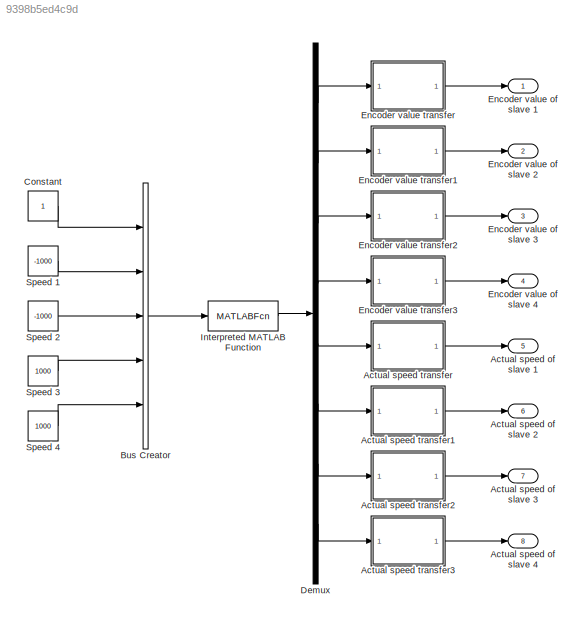
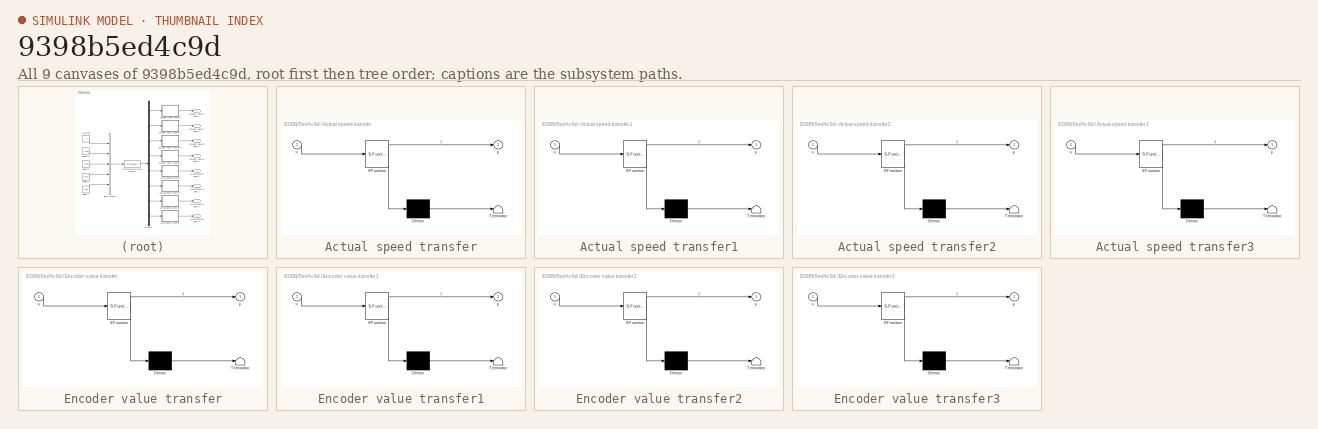
[diagram: thumbnail index - all 9 canvases of the model, root first then tree order]
MODEL slx_9398b5ed4c9d
KIND model
CONFIG AbsTol = auto
CONFIG EnableMultiTasking = off
CONFIG FixedStep = 1
CONFIG MaxStep = auto
CONFIG MinStep = auto
CONFIG RelTol = 1e-3
CONFIG SampleTimeConstraint = Unconstrained
CONFIG Solver = FixedStepAuto
CONFIG SolverName = FixedStepAuto
CONFIG StartTime = 0.0
CONFIG StopTime = 5
BLOCK [Outport] Actual speed of slave 1
  IconDisplay = Port number
  Port = 5
BLOCK [Outport] Actual speed of slave 2
  IconDisplay = Port number
  Port = 6
BLOCK [Outport] Actual speed of slave 3
  IconDisplay = Port number
  Port = 7
BLOCK [Outport] Actual speed of slave 4
  IconDisplay = Port number
  Port = 8
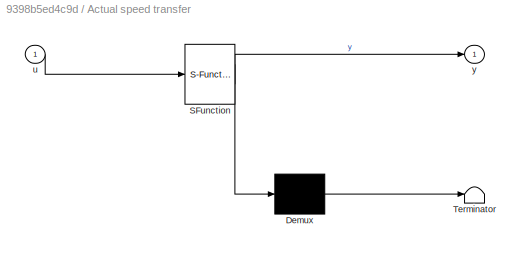
BLOCK [SubSystem] Actual speed transfer
  ErrorFcn = Stateflow.Translate.translate
  PermitHierarchicalResolution = ExplicitOnly
  Ports = [1, 1]
  RequestExecContextInheritance = off
  SFBlockType = MATLAB Function
  TreatAsAtomicUnit = on
BLOCK [Demux] Actual speed transfer/ Demux 
  Outputs = 1
  Ports = [1, 1]
BLOCK [S-Function] Actual speed transfer/ SFunction 
  EnableBusSupport = on
  FunctionName = sf_sfun
  PortCounts = [1 2]
  Ports = [1, 2]
  SFcnIsStateOwnerBlock = off
  SFunctionDeploymentMode = off
  Tag = Stateflow S-Function simulink_test 1
BLOCK [Terminator] Actual speed transfer/ Terminator 
BLOCK [Inport] Actual speed transfer/u
  IconDisplay = Port number
BLOCK [Outport] Actual speed transfer/y
  IconDisplay = Port number
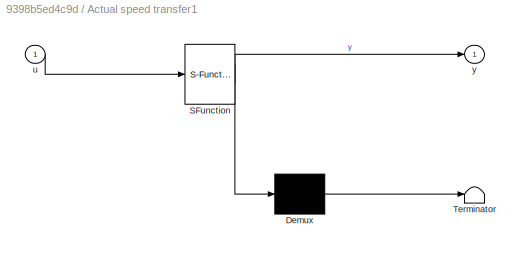
BLOCK [SubSystem] Actual speed transfer1
  ErrorFcn = Stateflow.Translate.translate
  PermitHierarchicalResolution = ExplicitOnly
  Ports = [1, 1]
  RequestExecContextInheritance = off
  SFBlockType = MATLAB Function
  TreatAsAtomicUnit = on
BLOCK [Demux] Actual speed transfer1/ Demux 
  Outputs = 1
  Ports = [1, 1]
BLOCK [S-Function] Actual speed transfer1/ SFunction 
  EnableBusSupport = on
  FunctionName = sf_sfun
  PortCounts = [1 2]
  Ports = [1, 2]
  SFcnIsStateOwnerBlock = off
  SFunctionDeploymentMode = off
  Tag = Stateflow S-Function simulink_test 6
BLOCK [Terminator] Actual speed transfer1/ Terminator 
BLOCK [Inport] Actual speed transfer1/u
  IconDisplay = Port number
BLOCK [Outport] Actual speed transfer1/y
  IconDisplay = Port number
BLOCK [SubSystem] Actual speed transfer2
  ErrorFcn = Stateflow.Translate.translate
  PermitHierarchicalResolution = ExplicitOnly
  Ports = [1, 1]
  RequestExecContextInheritance = off
  SFBlockType = MATLAB Function
  TreatAsAtomicUnit = on
BLOCK [Demux] Actual speed transfer2/ Demux 
  Outputs = 1
  Ports = [1, 1]
BLOCK [S-Function] Actual speed transfer2/ SFunction 
  EnableBusSupport = on
  FunctionName = sf_sfun
  PortCounts = [1 2]
  Ports = [1, 2]
  SFcnIsStateOwnerBlock = off
  SFunctionDeploymentMode = off
  Tag = Stateflow S-Function simulink_test 7
BLOCK [Terminator] Actual speed transfer2/ Terminator 
BLOCK [Inport] Actual speed transfer2/u
  IconDisplay = Port number
BLOCK [Outport] Actual speed transfer2/y
  IconDisplay = Port number
BLOCK [SubSystem] Actual speed transfer3
  ErrorFcn = Stateflow.Translate.translate
  PermitHierarchicalResolution = ExplicitOnly
  Ports = [1, 1]
  RequestExecContextInheritance = off
  SFBlockType = MATLAB Function
  TreatAsAtomicUnit = on
BLOCK [Demux] Actual speed transfer3/ Demux 
  Outputs = 1
  Ports = [1, 1]
BLOCK [S-Function] Actual speed transfer3/ SFunction 
  EnableBusSupport = on
  FunctionName = sf_sfun
  PortCounts = [1 2]
  Ports = [1, 2]
  SFcnIsStateOwnerBlock = off
  SFunctionDeploymentMode = off
  Tag = Stateflow S-Function simulink_test 8
BLOCK [Terminator] Actual speed transfer3/ Terminator 
BLOCK [Inport] Actual speed transfer3/u
  IconDisplay = Port number
BLOCK [Outport] Actual speed transfer3/y
  IconDisplay = Port number
BLOCK [BusCreator] Bus Creator
  DisplayOption = bar
  InheritFromInputs = on
  Inputs = 5
  Ports = [5, 1]
BLOCK [Constant] Constant
BLOCK [Demux] Demux
  DisplayOption = bar
  Outputs = 8
  Ports = [1, 8]
BLOCK [Outport] Encoder value of slave 1
  IconDisplay = Port number
BLOCK [Outport] Encoder value of slave 2
  IconDisplay = Port number
  Port = 2
BLOCK [Outport] Encoder value of slave 3
  IconDisplay = Port number
  Port = 3
BLOCK [Outport] Encoder value of slave 4
  IconDisplay = Port number
  Port = 4
BLOCK [SubSystem] Encoder value transfer
  ErrorFcn = Stateflow.Translate.translate
  PermitHierarchicalResolution = ExplicitOnly
  Ports = [1, 1]
  RequestExecContextInheritance = off
  SFBlockType = MATLAB Function
  TreatAsAtomicUnit = on
BLOCK [Demux] Encoder value transfer/ Demux 
  Outputs = 1
  Ports = [1, 1]
BLOCK [S-Function] Encoder value transfer/ SFunction 
  EnableBusSupport = on
  FunctionName = sf_sfun
  PortCounts = [1 2]
  Ports = [1, 2]
  SFcnIsStateOwnerBlock = off
  SFunctionDeploymentMode = off
  Tag = Stateflow S-Function simulink_test 2
BLOCK [Terminator] Encoder value transfer/ Terminator 
BLOCK [Inport] Encoder value transfer/u
  IconDisplay = Port number
BLOCK [Outport] Encoder value transfer/y
  IconDisplay = Port number
BLOCK [SubSystem] Encoder value transfer1
  ErrorFcn = Stateflow.Translate.translate
  PermitHierarchicalResolution = ExplicitOnly
  Ports = [1, 1]
  RequestExecContextInheritance = off
  SFBlockType = MATLAB Function
  TreatAsAtomicUnit = on
BLOCK [Demux] Encoder value transfer1/ Demux 
  Outputs = 1
  Ports = [1, 1]
BLOCK [S-Function] Encoder value transfer1/ SFunction 
  EnableBusSupport = on
  FunctionName = sf_sfun
  PortCounts = [1 2]
  Ports = [1, 2]
  SFcnIsStateOwnerBlock = off
  SFunctionDeploymentMode = off
  Tag = Stateflow S-Function simulink_test 3
BLOCK [Terminator] Encoder value transfer1/ Terminator 
BLOCK [Inport] Encoder value transfer1/u
  IconDisplay = Port number
BLOCK [Outport] Encoder value transfer1/y
  IconDisplay = Port number
BLOCK [SubSystem] Encoder value transfer2
  ErrorFcn = Stateflow.Translate.translate
  PermitHierarchicalResolution = ExplicitOnly
  Ports = [1, 1]
  RequestExecContextInheritance = off
  SFBlockType = MATLAB Function
  TreatAsAtomicUnit = on
BLOCK [Demux] Encoder value transfer2/ Demux 
  Outputs = 1
  Ports = [1, 1]
BLOCK [S-Function] Encoder value transfer2/ SFunction 
  EnableBusSupport = on
  FunctionName = sf_sfun
  PortCounts = [1 2]
  Ports = [1, 2]
  SFcnIsStateOwnerBlock = off
  SFunctionDeploymentMode = off
  Tag = Stateflow S-Function simulink_test 4
BLOCK [Terminator] Encoder value transfer2/ Terminator 
BLOCK [Inport] Encoder value transfer2/u
  IconDisplay = Port number
BLOCK [Outport] Encoder value transfer2/y
  IconDisplay = Port number
BLOCK [SubSystem] Encoder value transfer3
  ErrorFcn = Stateflow.Translate.translate
  PermitHierarchicalResolution = ExplicitOnly
  Ports = [1, 1]
  RequestExecContextInheritance = off
  SFBlockType = MATLAB Function
  TreatAsAtomicUnit = on
BLOCK [Demux] Encoder value transfer3/ Demux 
  Outputs = 1
  Ports = [1, 1]
BLOCK [S-Function] Encoder value transfer3/ SFunction 
  EnableBusSupport = on
  FunctionName = sf_sfun
  PortCounts = [1 2]
  Ports = [1, 2]
  SFcnIsStateOwnerBlock = off
  SFunctionDeploymentMode = off
  Tag = Stateflow S-Function simulink_test 5
BLOCK [Terminator] Encoder value transfer3/ Terminator 
BLOCK [Inport] Encoder value transfer3/u
  IconDisplay = Port number
BLOCK [Outport] Encoder value transfer3/y
  IconDisplay = Port number
BLOCK [MATLABFcn] Interpreted MATLAB Function
  MATLABFcn = run
  Ports = [1, 1]
  StartFcn = init([1])
  StopFcn = stop([1])
BLOCK [Constant] Speed 1
  Value = -1000
BLOCK [Constant] Speed 2
  Value = -1000
BLOCK [Constant] Speed 3
  Value = 1000
BLOCK [Constant] Speed 4
  Value = 1000
LINE Actual speed transfer1:1 -> Actual speed of slave 2:1
LINE Actual speed transfer2:1 -> Actual speed of slave 3:1
LINE Actual speed transfer3:1 -> Actual speed of slave 4:1
LINE Actual speed transfer:1 -> Actual speed of slave 1:1
LINE Bus Creator:1 -> Interpreted MATLAB Function:1
LINE Constant:1 -> Bus Creator:1
LINE Demux:1 -> Encoder value transfer:1
LINE Demux:2 -> Encoder value transfer1:1
LINE Demux:3 -> Encoder value transfer2:1
LINE Demux:4 -> Encoder value transfer3:1
LINE Demux:5 -> Actual speed transfer:1
LINE Demux:6 -> Actual speed transfer1:1
LINE Demux:7 -> Actual speed transfer2:1
LINE Demux:8 -> Actual speed transfer3:1
LINE Encoder value transfer1:1 -> Encoder value of slave 2:1
LINE Encoder value transfer2:1 -> Encoder value of slave 3:1
LINE Encoder value transfer3:1 -> Encoder value of slave 4:1
LINE Encoder value transfer:1 -> Encoder value of slave 1:1
LINE Interpreted MATLAB Function:1 -> Demux:1
LINE Speed 1:1 -> Bus Creator:2
LINE Speed 2:1 -> Bus Creator:3
LINE Speed 3:1 -> Bus Creator:4
LINE Speed 4:1 -> Bus Creator:5
CHART Actual speed transfer states=1 transitions=1
  STATE_LABEL 'eML_blk_kernel()'
  STATE_LABEL "SCRIPT:\nfunction y = fcn(u)\nif (u > 4000000000)\n    a = dec2bin(u - 1, 32);\n    k = 32;\n    for k = 1:32\n        if a(k) == '0'\n            a(k) = '1';\n        else\n            a(k) = '0';\n        end\n    end\n    y = bin2dec(a)*(-1);\nelse\n    y = u;\nend"  <repeated x4 — deduplicated; at blocks: Actual speed transfer, Actual speed transfer1, Actual speed transfer2, Actual speed transfer3>
CHART Encoder value transfer states=1 transitions=1
  STATE_LABEL 'eML_blk_kernel()'
  STATE_LABEL "SCRIPT:\nfunction y = fcn(u)\nif (u > 4290000000)\n    a = dec2bin(u - 1, 32);\n    k = 32;\n    for k = 1:32\n        if a(k) == '0'\n            a(k) = '1';\n        else\n            a(k) = '0';\n        end\n    end\n    y = bin2dec(a)*(-1);\nelse\n    y = u;\nend"  <repeated x4 — deduplicated; at blocks: Encoder value transfer, Encoder value transfer1, Encoder value transfer2, Encoder value transfer3>
CHART Encoder value transfer1 states=1 transitions=1
  STATE_LABEL 'eML_blk_kernel()'
CHART Encoder value transfer2 states=1 transitions=1
  STATE_LABEL 'eML_blk_kernel()'
CHART Encoder value transfer3 states=1 transitions=1
  STATE_LABEL 'eML_blk_kernel()'
CHART Actual speed transfer1 states=1 transitions=1
  STATE_LABEL 'eML_blk_kernel()'
CHART Actual speed transfer2 states=1 transitions=1
  STATE_LABEL 'eML_blk_kernel()'
CHART Actual speed transfer3 states=1 transitions=1
  STATE_LABEL 'eML_blk_kernel()'
